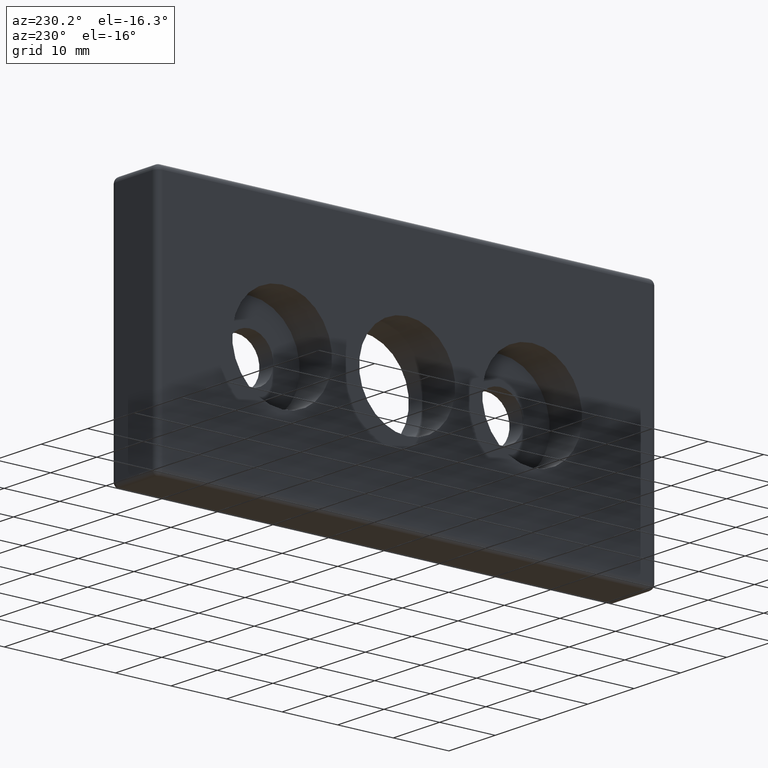
[diagram: clean part render]
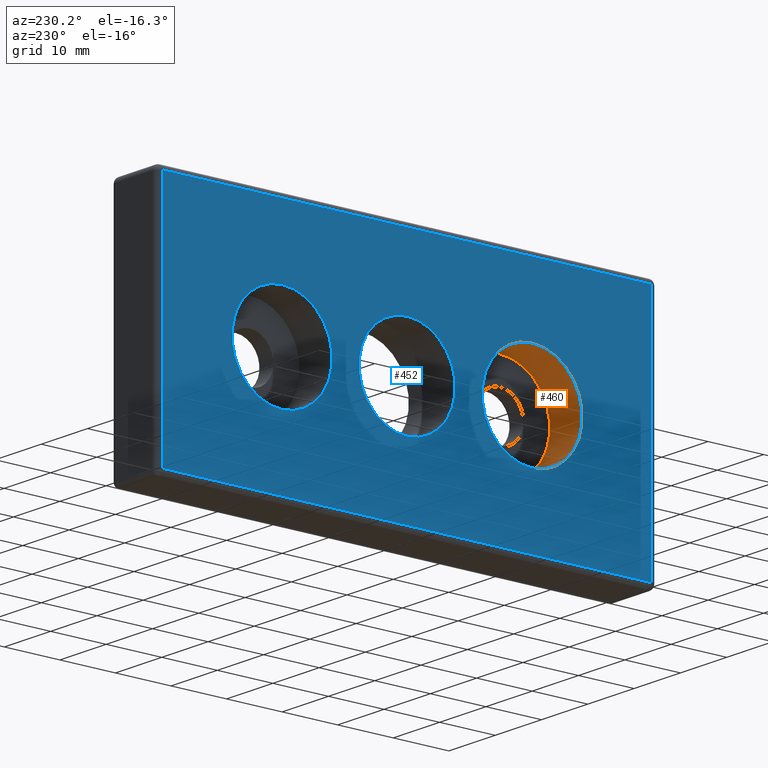
[diagram: same view with the hole feature highlighted: cylindrical wall and planar end face, labeled with their STEP entity ids]
A machine part, auxiliary view. The highlighted faces form one hole feature of diameter 18 mm: the cylindrical wall (entity #460, orange) and its adjacent planar end face (entity #452, blue) — they share a circular edge in the B-rep.
Wall:
#25=FACE_BOUND('',#175,.T.);
#98=CYLINDRICAL_SURFACE('',#529,9.);
#131=FACE_OUTER_BOUND('',#174,.T.);
#174=EDGE_LOOP('',(#416));
#175=EDGE_LOOP('',(#417));
#205=CIRCLE('',#513,9.);
#212=CIRCLE('',#527,9.);
#239=VERTEX_POINT('',#790);
#246=VERTEX_POINT('',#811);
#297=EDGE_CURVE('',#239,#239,#205,.T.);
#304=EDGE_CURVE('',#246,#246,#212,.T.);
#416=ORIENTED_EDGE('',*,*,#297,.F.);
#417=ORIENTED_EDGE('',*,*,#304,.F.);
#460=ADVANCED_FACE('',(#131,#25),#98,.F.);
#513=AXIS2_PLACEMENT_3D('',#791,#654,#655);
#527=AXIS2_PLACEMENT_3D('',#812,#682,#683);
#529=AXIS2_PLACEMENT_3D('',#815,#686,#687);
#654=DIRECTION('center_axis',(1.,0.,0.));
#655=DIRECTION('ref_axis',(0.,0.,1.));
#682=DIRECTION('center_axis',(-1.,0.,0.));
#683=DIRECTION('ref_axis',(0.,0.,1.));
#686=DIRECTION('center_axis',(-1.,0.,0.));
#687=DIRECTION('ref_axis',(0.,0.,1.));
#790=CARTESIAN_POINT('',(-5.,-22.5,9.));
#791=CARTESIAN_POINT('Origin',(-5.,-22.5,0.));
#811=CARTESIAN_POINT('',(2.,-22.5,9.));
#812=CARTESIAN_POINT('Origin',(2.,-22.5,0.));
#815=CARTESIAN_POINT('Origin',(-1.5,-22.5,0.));
End face:
#15=FACE_BOUND('',#157,.T.);
#16=FACE_BOUND('',#158,.T.);
#17=FACE_BOUND('',#159,.T.);
#30=PLANE('',#511);
#42=LINE('',#752,#66);
#46=LINE('',#765,#70);
#48=LINE('',#768,#72);
#50=LINE('',#771,#74);
#66=VECTOR('',#604,43.);
#70=VECTOR('',#620,88.);
#72=VECTOR('',#624,43.);
#74=VECTOR('',#628,88.);
#123=FACE_OUTER_BOUND('',#156,.T.);
#156=EDGE_LOOP('',(#386,#387,#388,#389));
#157=EDGE_LOOP('',(#390));
#158=EDGE_LOOP('',(#391));
#159=EDGE_LOOP('',(#392));
#204=CIRCLE('',#512,8.647);
#205=CIRCLE('',#513,9.);
#206=CIRCLE('',#514,9.);
#224=VERTEX_POINT('',#716);
#230=VERTEX_POINT('',#733);
#233=VERTEX_POINT('',#743);
#236=VERTEX_POINT('',#756);
#238=VERTEX_POINT('',#788);
#239=VERTEX_POINT('',#790);
#240=VERTEX_POINT('',#792);
#275=EDGE_CURVE('',#224,#233,#42,.T.);
#282=EDGE_CURVE('',#233,#236,#46,.T.);
#284=EDGE_CURVE('',#236,#230,#48,.T.);
#286=EDGE_CURVE('',#230,#224,#50,.T.);
#296=EDGE_CURVE('',#238,#238,#204,.T.);
#297=EDGE_CURVE('',#239,#239,#205,.T.);
#298=EDGE_CURVE('',#240,#240,#206,.T.);
#386=ORIENTED_EDGE('',*,*,#275,.F.);
#387=ORIENTED_EDGE('',*,*,#286,.F.);
#388=ORIENTED_EDGE('',*,*,#284,.F.);
#389=ORIENTED_EDGE('',*,*,#282,.F.);
#390=ORIENTED_EDGE('',*,*,#296,.T.);
#391=ORIENTED_EDGE('',*,*,#297,.T.);
#392=ORIENTED_EDGE('',*,*,#298,.T.);
#452=ADVANCED_FACE('',(#123,#15,#16,#17),#30,.T.);
#511=AXIS2_PLACEMENT_3D('',#787,#650,#651);
#512=AXIS2_PLACEMENT_3D('',#789,#652,#653);
#513=AXIS2_PLACEMENT_3D('',#791,#654,#655);
#514=AXIS2_PLACEMENT_3D('',#793,#656,#657);
#604=DIRECTION('',(0.,0.,1.));
#620=DIRECTION('',(0.,-1.,0.));
#624=DIRECTION('',(0.,0.,-1.));
#628=DIRECTION('',(0.,1.,0.));
#650=DIRECTION('center_axis',(-1.,0.,0.));
#651=DIRECTION('ref_axis',(0.,0.,1.));
#652=DIRECTION('center_axis',(1.,0.,0.));
#653=DIRECTION('ref_axis',(0.,0.,1.));
#654=DIRECTION('center_axis',(1.,0.,0.));
#655=DIRECTION('ref_axis',(0.,0.,1.));
#656=DIRECTION('center_axis',(1.,0.,0.));
#657=DIRECTION('ref_axis',(0.,0.,1.));
#716=CARTESIAN_POINT('',(-5.,44.,-21.5));
#733=CARTESIAN_POINT('',(-5.,-44.,-21.5));
#743=CARTESIAN_POINT('',(-5.,44.,21.5));
#752=CARTESIAN_POINT('',(-5.,44.,-11.25));
#756=CARTESIAN_POINT('',(-5.,-44.,21.5));
#765=CARTESIAN_POINT('',(-5.,22.5,21.5));
#768=CARTESIAN_POINT('',(-5.,-44.,11.25));
#771=CARTESIAN_POINT('',(-5.,-22.5,-21.5));
#787=CARTESIAN_POINT('Origin',(-5.,0.,0.));
#788=CARTESIAN_POINT('',(-5.,0.,8.647));
#789=CARTESIAN_POINT('Origin',(-5.,0.,0.));
#790=CARTESIAN_POINT('',(-5.,-22.5,9.));
#791=CARTESIAN_POINT('Origin',(-5.,-22.5,0.));
#792=CARTESIAN_POINT('',(-5.,22.5,9.));
#793=CARTESIAN_POINT('Origin',(-5.,22.5,0.));